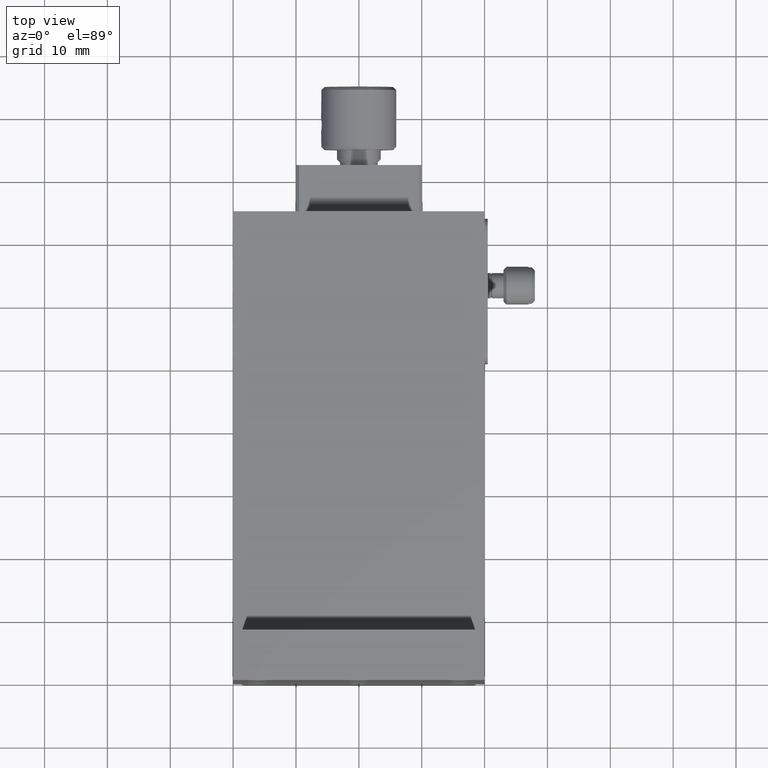
[diagram: clean part render]
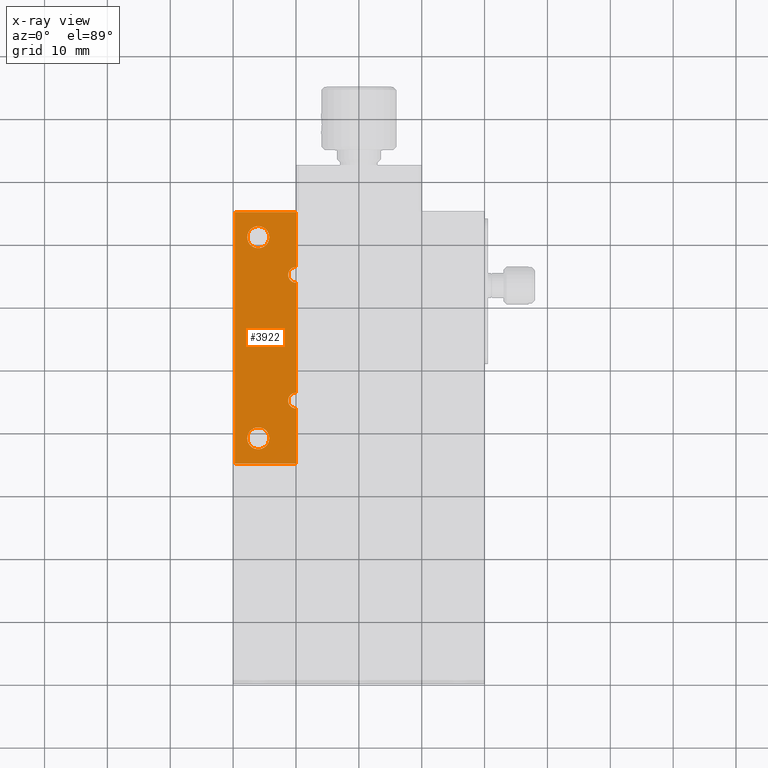
[diagram: x-ray — body ghosted, one internal face saturated and labeled with its STEP entity id]
A machine part, top view, then the same camera in x-ray: the body is ghosted and one INTERNAL B-rep face — a face not visible from any outside direction — is saturated and labeled: STEP entity #3922.
In plain terms, the highlighted planar face has unit normal (0, 0, -1).
Its self-contained STEP definition (entity closure, byte-faithful):
#26 = DIRECTION ( 'NONE',  ( 1.000000000000000000, 0.000000000000000000, -0.000000000000000000 ) ) ;
#85 = LINE ( 'NONE', #7179, #448 ) ;
#98 = DIRECTION ( 'NONE',  ( 1.000000000000000000, 0.000000000000000000, 0.000000000000000000 ) ) ;
#206 = EDGE_CURVE ( 'NONE', #373, #6679, #6796, .T. ) ;
#241 = VERTEX_POINT ( 'NONE', #6783 ) ;
#373 = VERTEX_POINT ( 'NONE', #2351 ) ;
#448 = VECTOR ( 'NONE', #5336, 1000.000000000000000 ) ;
#457 = EDGE_CURVE ( 'NONE', #2326, #2145, #4031, .T. ) ;
#476 = FACE_BOUND ( 'NONE', #7541, .T. ) ;
#587 = FACE_BOUND ( 'NONE', #6690, .T. ) ;
#878 = CARTESIAN_POINT ( 'NONE',  ( -19.70200000000000173, 75.00000000000000000, 0.000000000000000000 ) ) ;
#959 = EDGE_CURVE ( 'NONE', #7096, #7096, #3860, .T. ) ;
#1037 = AXIS2_PLACEMENT_3D ( 'NONE', #4238, #6001, #98 ) ;
#1760 = VECTOR ( 'NONE', #1934, 1000.000000000000000 ) ;
#1778 = CARTESIAN_POINT ( 'NONE',  ( -19.70200000000000173, 75.00000000000000000, 0.000000000000000000 ) ) ;
#1867 = CARTESIAN_POINT ( 'NONE',  ( -19.70200000000000173, 75.00000000000000000, 1.264902534566421922E-16 ) ) ;
#1872 = CARTESIAN_POINT ( 'NONE',  ( -10.00000000000000000, 75.00000000000000000, 0.000000000000000000 ) ) ;
#1934 = DIRECTION ( 'NONE',  ( 0.000000000000000000, 1.000000000000000000, -0.000000000000000000 ) ) ;
#2028 = ORIENTED_EDGE ( 'NONE', *, *, #6148, .T. ) ;
#2112 = CARTESIAN_POINT ( 'NONE',  ( -10.00000000000000000, 43.75000000000000000, 0.000000000000000000 ) ) ;
#2145 = VERTEX_POINT ( 'NONE', #6506 ) ;
#2162 = DIRECTION ( 'NONE',  ( -0.000000000000000000, -0.000000000000000000, -1.000000000000000000 ) ) ;
#2262 = VERTEX_POINT ( 'NONE', #4199 ) ;
#2297 = ORIENTED_EDGE ( 'NONE', *, *, #6704, .F. ) ;
#2312 = AXIS2_PLACEMENT_3D ( 'NONE', #4089, #3516, #6494 ) ;
#2326 = VERTEX_POINT ( 'NONE', #1867 ) ;
#2351 = CARTESIAN_POINT ( 'NONE',  ( -10.00000000000000000, 63.75000000000000000, 0.000000000000000000 ) ) ;
#2365 = EDGE_CURVE ( 'NONE', #3279, #241, #4618, .T. ) ;
#2463 = CARTESIAN_POINT ( 'NONE',  ( -14.25000000000000000, 71.00000000000001421, 0.000000000000000000 ) ) ;
#2480 = ORIENTED_EDGE ( 'NONE', *, *, #206, .T. ) ;
#2899 = AXIS2_PLACEMENT_3D ( 'NONE', #6062, #4265, #3196 ) ;
#3196 = DIRECTION ( 'NONE',  ( 1.000000000000000000, 0.000000000000000000, 0.000000000000000000 ) ) ;
#3279 = VERTEX_POINT ( 'NONE', #2112 ) ;
#3299 = CARTESIAN_POINT ( 'NONE',  ( -10.00000000000000000, 66.25000000000000000, 0.000000000000000000 ) ) ;
#3376 = DIRECTION ( 'NONE',  ( 1.000000000000000000, 0.000000000000000000, 0.000000000000000000 ) ) ;
#3475 = ORIENTED_EDGE ( 'NONE', *, *, #4857, .F. ) ;
#3516 = DIRECTION ( 'NONE',  ( -0.000000000000000000, -0.000000000000000000, -1.000000000000000000 ) ) ;
#3860 = CIRCLE ( 'NONE', #1037, 1.749999999999999778 ) ;
#3922 = ADVANCED_FACE ( 'NONE', ( #6296, #476, #587 ), #7066, .F. ) ;
#4029 = VECTOR ( 'NONE', #5930, 1000.000000000000000 ) ;
#4031 = LINE ( 'NONE', #5361, #6042 ) ;
#4083 = VECTOR ( 'NONE', #5243, 1000.000000000000000 ) ;
#4089 = CARTESIAN_POINT ( 'NONE',  ( -10.00000000000000000, 45.00000000000000000, 0.000000000000000000 ) ) ;
#4153 = VECTOR ( 'NONE', #6817, 1000.000000000000000 ) ;
#4199 = CARTESIAN_POINT ( 'NONE',  ( -19.70200000000000173, 35.00000000000000000, 1.264902534566421922E-16 ) ) ;
#4238 = CARTESIAN_POINT ( 'NONE',  ( -16.00000000000000000, 39.00000000000000000, 0.000000000000000000 ) ) ;
#4265 = DIRECTION ( 'NONE',  ( 0.000000000000000000, 0.000000000000000000, 1.000000000000000000 ) ) ;
#4618 = CIRCLE ( 'NONE', #2312, 1.249999999999999334 ) ;
#4636 = LINE ( 'NONE', #6313, #4083 ) ;
#4755 = EDGE_CURVE ( 'NONE', #2262, #5564, #85, .T. ) ;
#4857 = EDGE_CURVE ( 'NONE', #7204, #7204, #6558, .T. ) ;
#5057 = CARTESIAN_POINT ( 'NONE',  ( -10.00000000000000000, 65.00000000000000000, 0.000000000000000000 ) ) ;
#5222 = DIRECTION ( 'NONE',  ( 0.000000000000000000, 0.000000000000000000, -1.000000000000000000 ) ) ;
#5243 = DIRECTION ( 'NONE',  ( 0.000000000000000000, 1.000000000000000000, -0.000000000000000000 ) ) ;
#5290 = ORIENTED_EDGE ( 'NONE', *, *, #7208, .T. ) ;
#5336 = DIRECTION ( 'NONE',  ( 1.000000000000000000, 0.000000000000000000, -0.000000000000000000 ) ) ;
#5361 = CARTESIAN_POINT ( 'NONE',  ( 0.000000000000000000, 75.00000000000000000, 0.000000000000000000 ) ) ;
#5406 = CARTESIAN_POINT ( 'NONE',  ( -14.25000000000000000, 39.00000000000000000, 0.000000000000000000 ) ) ;
#5412 = LINE ( 'NONE', #5489, #1760 ) ;
#5489 = CARTESIAN_POINT ( 'NONE',  ( -10.00000000000000000, 75.00000000000000000, 0.000000000000000000 ) ) ;
#5564 = VERTEX_POINT ( 'NONE', #7165 ) ;
#5873 = AXIS2_PLACEMENT_3D ( 'NONE', #1778, #5222, #5912 ) ;
#5912 = DIRECTION ( 'NONE',  ( -1.000000000000000000, 0.000000000000000000, -0.000000000000000000 ) ) ;
#5930 = DIRECTION ( 'NONE',  ( 0.000000000000000000, 1.000000000000000000, -0.000000000000000000 ) ) ;
#5957 = ORIENTED_EDGE ( 'NONE', *, *, #6862, .T. ) ;
#6001 = DIRECTION ( 'NONE',  ( 0.000000000000000000, 0.000000000000000000, 1.000000000000000000 ) ) ;
#6042 = VECTOR ( 'NONE', #26, 1000.000000000000000 ) ;
#6062 = CARTESIAN_POINT ( 'NONE',  ( -16.00000000000000000, 71.00000000000001421, 0.000000000000000000 ) ) ;
#6148 = EDGE_CURVE ( 'NONE', #5564, #3279, #6644, .T. ) ;
#6226 = ORIENTED_EDGE ( 'NONE', *, *, #2365, .T. ) ;
#6296 = FACE_OUTER_BOUND ( 'NONE', #6840, .T. ) ;
#6313 = CARTESIAN_POINT ( 'NONE',  ( -10.00000000000000000, 75.00000000000000000, 0.000000000000000000 ) ) ;
#6494 = DIRECTION ( 'NONE',  ( 1.000000000000000000, 0.000000000000000000, 0.000000000000000000 ) ) ;
#6506 = CARTESIAN_POINT ( 'NONE',  ( -10.00000000000000000, 75.00000000000000000, 0.000000000000000000 ) ) ;
#6558 = CIRCLE ( 'NONE', #2899, 1.749999999999999778 ) ;
#6613 = ORIENTED_EDGE ( 'NONE', *, *, #4755, .T. ) ;
#6644 = LINE ( 'NONE', #1872, #4029 ) ;
#6679 = VERTEX_POINT ( 'NONE', #3299 ) ;
#6690 = EDGE_LOOP ( 'NONE', ( #7570 ) ) ;
#6704 = EDGE_CURVE ( 'NONE', #2262, #2326, #6780, .T. ) ;
#6780 = LINE ( 'NONE', #878, #4153 ) ;
#6783 = CARTESIAN_POINT ( 'NONE',  ( -10.00000000000000000, 46.25000000000000000, 0.000000000000000000 ) ) ;
#6796 = CIRCLE ( 'NONE', #7164, 1.249999999999999334 ) ;
#6817 = DIRECTION ( 'NONE',  ( 0.000000000000000000, 1.000000000000000000, 0.000000000000000000 ) ) ;
#6840 = EDGE_LOOP ( 'NONE', ( #5957, #2480, #5290, #7041, #2297, #6613, #2028, #6226 ) ) ;
#6862 = EDGE_CURVE ( 'NONE', #241, #373, #4636, .T. ) ;
#7041 = ORIENTED_EDGE ( 'NONE', *, *, #457, .F. ) ;
#7066 = PLANE ( 'NONE',  #5873 ) ;
#7096 = VERTEX_POINT ( 'NONE', #5406 ) ;
#7164 = AXIS2_PLACEMENT_3D ( 'NONE', #5057, #2162, #3376 ) ;
#7165 = CARTESIAN_POINT ( 'NONE',  ( -10.00000000000000000, 35.00000000000000000, 0.000000000000000000 ) ) ;
#7179 = CARTESIAN_POINT ( 'NONE',  ( 0.000000000000000000, 35.00000000000000000, 0.000000000000000000 ) ) ;
#7204 = VERTEX_POINT ( 'NONE', #2463 ) ;
#7208 = EDGE_CURVE ( 'NONE', #6679, #2145, #5412, .T. ) ;
#7541 = EDGE_LOOP ( 'NONE', ( #3475 ) ) ;
#7570 = ORIENTED_EDGE ( 'NONE', *, *, #959, .F. ) ;